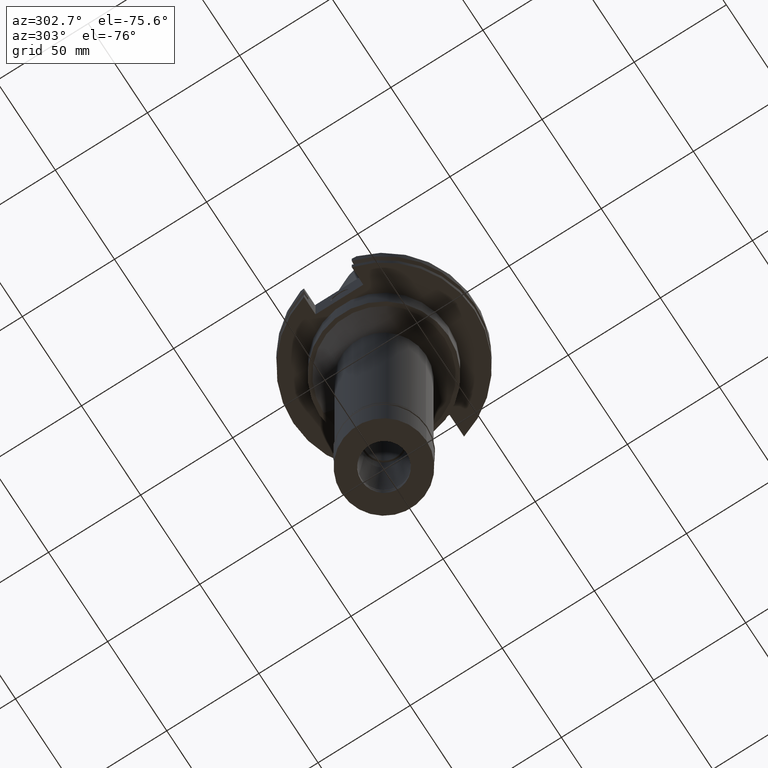
[diagram: clean part render]
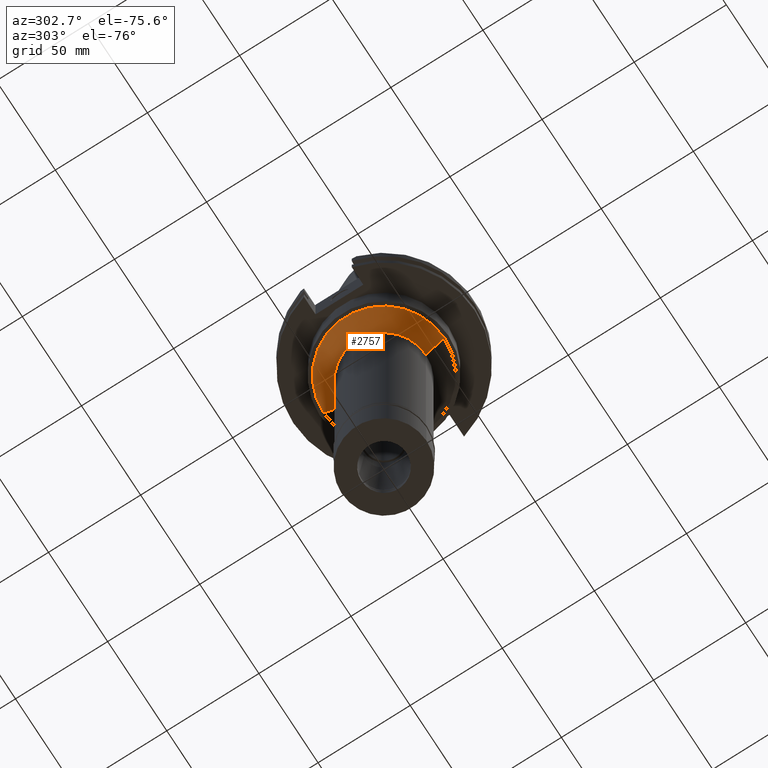
[diagram: same view with one face highlighted and labeled with its STEP entity id]
A machine part, auxiliary view. The second image highlights one B-rep face of the part: STEP entity #2757.
In plain terms, the highlighted conical surface has half-angle 45 deg.
Its self-contained STEP definition (entity closure, byte-faithful):
#79 = ORIENTED_EDGE ( 'NONE', *, *, #972, .T. ) ;
#83 = VECTOR ( 'NONE', #1990, 1000.000000000000114 ) ;
#203 = DIRECTION ( 'NONE',  ( 0.0000000000000000000, 0.0000000000000000000, -1.000000000000000000 ) ) ;
#256 = EDGE_CURVE ( 'NONE', #832, #613, #385, .T. ) ;
#385 = LINE ( 'NONE', #419, #3090 ) ;
#419 = CARTESIAN_POINT ( 'NONE',  ( 0.0000000000000000000, -32.75000000000000000, -35.00000000000000000 ) ) ;
#559 = VERTEX_POINT ( 'NONE', #1602 ) ;
#603 = CARTESIAN_POINT ( 'NONE',  ( 0.0000000000000000000, 22.75000000000000000, -45.00000000000000000 ) ) ;
#613 = VERTEX_POINT ( 'NONE', #3152 ) ;
#724 = CARTESIAN_POINT ( 'NONE',  ( 0.0000000000000000000, 0.0000000000000000000, -40.00000000000000000 ) ) ;
#730 = ORIENTED_EDGE ( 'NONE', *, *, #256, .F. ) ;
#832 = VERTEX_POINT ( 'NONE', #1390 ) ;
#897 = DIRECTION ( 'NONE',  ( 0.0000000000000000000, 0.7071067811865474617, -0.7071067811865474617 ) ) ;
#943 = ORIENTED_EDGE ( 'NONE', *, *, #945, .T. ) ;
#945 = EDGE_CURVE ( 'NONE', #832, #559, #2667, .T. ) ;
#962 = LINE ( 'NONE', #1250, #83 ) ;
#972 = EDGE_CURVE ( 'NONE', #559, #1207, #962, .T. ) ;
#1207 = VERTEX_POINT ( 'NONE', #603 ) ;
#1250 = CARTESIAN_POINT ( 'NONE',  ( 0.0000000000000000000, 32.75000000000000000, -35.00000000000000000 ) ) ;
#1390 = CARTESIAN_POINT ( 'NONE',  ( 0.0000000000000000000, -32.75000000000000000, -35.00000000000000000 ) ) ;
#1474 = DIRECTION ( 'NONE',  ( 0.0000000000000000000, -1.000000000000000000, 0.0000000000000000000 ) ) ;
#1538 = CONICAL_SURFACE ( 'NONE', #1703, 27.75000000000000000, 0.7853981633972997312 ) ;
#1602 = CARTESIAN_POINT ( 'NONE',  ( 0.0000000000000000000, 32.75000000000000000, -35.00000000000000000 ) ) ;
#1644 = CIRCLE ( 'NONE', #2989, 22.75000000000000000 ) ;
#1703 = AXIS2_PLACEMENT_3D ( 'NONE', #724, #3020, #2785 ) ;
#1732 = CARTESIAN_POINT ( 'NONE',  ( 0.0000000000000000000, 0.0000000000000000000, -45.00000000000000000 ) ) ;
#1736 = DIRECTION ( 'NONE',  ( 0.0000000000000000000, -1.000000000000000000, 0.0000000000000000000 ) ) ;
#1990 = DIRECTION ( 'NONE',  ( 0.0000000000000000000, -0.7071067811865474617, -0.7071067811865474617 ) ) ;
#2304 = EDGE_LOOP ( 'NONE', ( #2483, #730, #943, #79 ) ) ;
#2483 = ORIENTED_EDGE ( 'NONE', *, *, #2633, .F. ) ;
#2559 = AXIS2_PLACEMENT_3D ( 'NONE', #2777, #203, #1736 ) ;
#2633 = EDGE_CURVE ( 'NONE', #613, #1207, #1644, .T. ) ;
#2667 = CIRCLE ( 'NONE', #2559, 32.75000000000000000 ) ;
#2754 = DIRECTION ( 'NONE',  ( 0.0000000000000000000, 0.0000000000000000000, -1.000000000000000000 ) ) ;
#2757 = ADVANCED_FACE ( 'NONE', ( #3290 ), #1538, .T. ) ;
#2777 = CARTESIAN_POINT ( 'NONE',  ( 0.0000000000000000000, 0.0000000000000000000, -35.00000000000000000 ) ) ;
#2785 = DIRECTION ( 'NONE',  ( 0.0000000000000000000, 1.000000000000000000, 0.0000000000000000000 ) ) ;
#2989 = AXIS2_PLACEMENT_3D ( 'NONE', #1732, #2754, #1474 ) ;
#3020 = DIRECTION ( 'NONE',  ( 0.0000000000000000000, 0.0000000000000000000, 1.000000000000000000 ) ) ;
#3090 = VECTOR ( 'NONE', #897, 1000.000000000000114 ) ;
#3152 = CARTESIAN_POINT ( 'NONE',  ( 0.0000000000000000000, -22.75000000000000000, -45.00000000000000000 ) ) ;
#3290 = FACE_OUTER_BOUND ( 'NONE', #2304, .T. ) ;